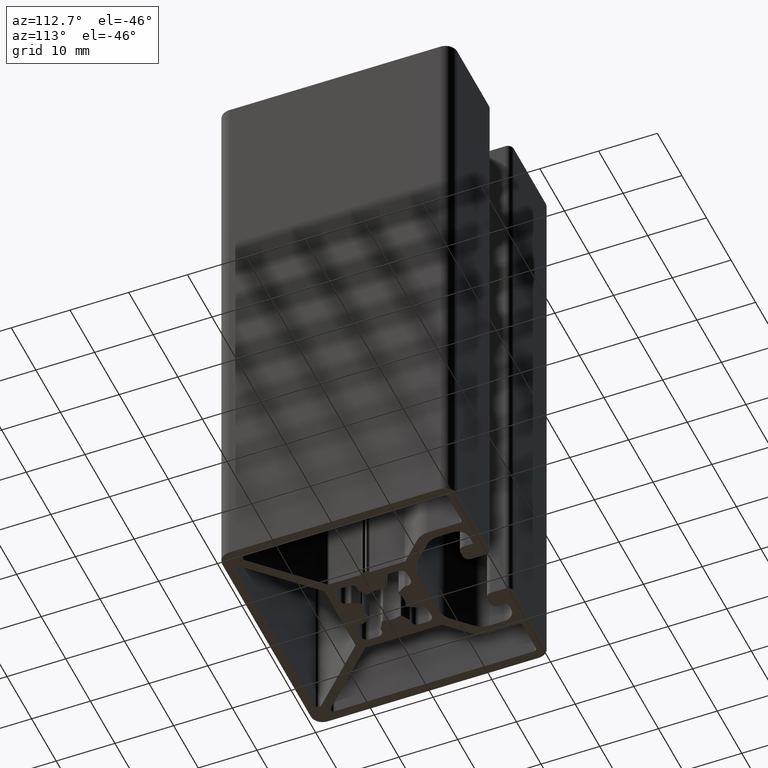
[diagram: clean part render]
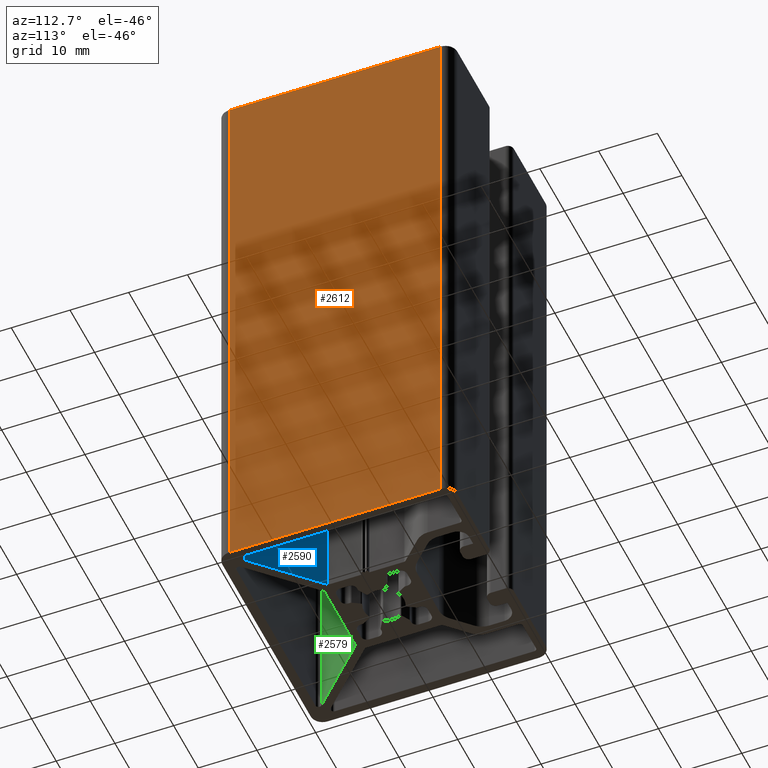
[diagram: same view with three faces highlighted in distinct colors, each labeled with its STEP entity id]
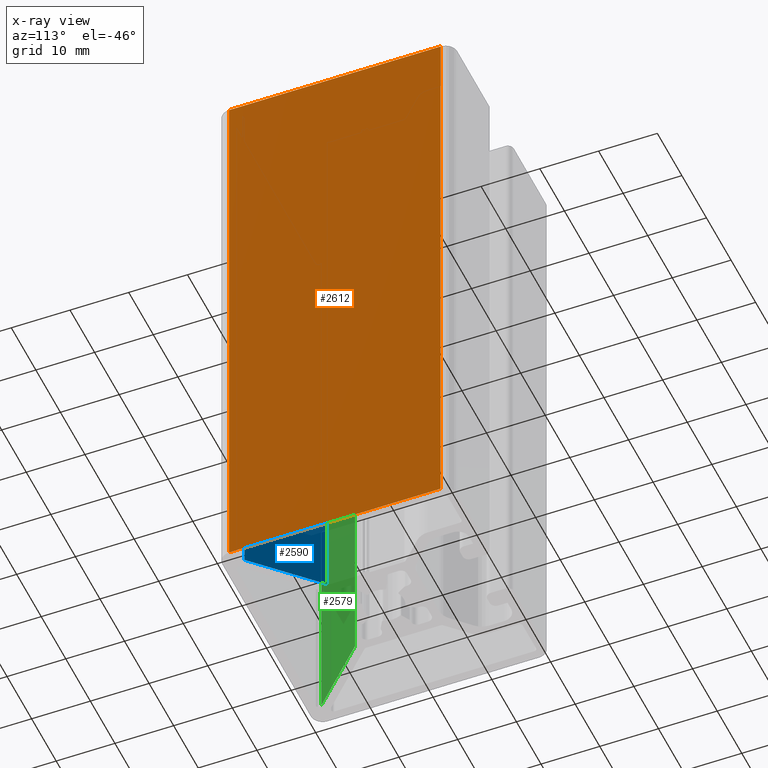
[diagram: x-ray of the same camera — body ghosted, the three highlighted faces saturated]
A machine part, auxiliary view with three faces highlighted in distinct colors.
The next image is the same camera in x-ray (body ghosted, the three faces saturated) — at least one of them is partly hidden behind the body in this view.
Their STEP definitions:

[orange] entity #2612 — the highlighted planar face has unit normal (1, 0, 0).
#348=FACE_OUTER_BOUND('',#483,.T.);
#483=EDGE_LOOP('',(#2279,#2280,#2281,#2282));
#733=LINE('',#4406,#988);
#741=LINE('',#4428,#996);
#742=LINE('',#4432,#997);
#743=LINE('',#4433,#998);
#988=VECTOR('',#3623,36.);
#996=VECTOR('',#3647,100.);
#997=VECTOR('',#3652,100.);
#998=VECTOR('',#3653,36.);
#1249=VERTEX_POINT('',#4403);
#1250=VERTEX_POINT('',#4405);
#1256=VERTEX_POINT('',#4427);
#1257=VERTEX_POINT('',#4431);
#1628=EDGE_CURVE('',#1250,#1249,#733,.T.);
#1639=EDGE_CURVE('',#1256,#1250,#741,.T.);
#1641=EDGE_CURVE('',#1257,#1249,#742,.T.);
#1642=EDGE_CURVE('',#1256,#1257,#743,.T.);
#2279=ORIENTED_EDGE('',*,*,#1628,.T.);
#2280=ORIENTED_EDGE('',*,*,#1641,.F.);
#2281=ORIENTED_EDGE('',*,*,#1642,.F.);
#2282=ORIENTED_EDGE('',*,*,#1639,.T.);
#2482=PLANE('',#2876);
#2612=ADVANCED_FACE('',(#348),#2482,.T.);
#2876=AXIS2_PLACEMENT_3D('',#4430,#3650,#3651);
#3623=DIRECTION('',(0.,-1.,0.));
#3647=DIRECTION('',(0.,0.,1.));
#3650=DIRECTION('center_axis',(1.,0.,0.));
#3651=DIRECTION('ref_axis',(0.,1.,0.));
#3652=DIRECTION('',(0.,0.,1.));
#3653=DIRECTION('',(0.,-1.,0.));
#4403=CARTESIAN_POINT('',(20.,-18.,100.));
#4405=CARTESIAN_POINT('',(20.,18.,100.));
#4406=CARTESIAN_POINT('',(20.,-9.,100.));
#4427=CARTESIAN_POINT('',(20.,18.,0.));
#4428=CARTESIAN_POINT('',(20.,18.,0.));
#4430=CARTESIAN_POINT('Origin',(20.,-18.,0.));
#4431=CARTESIAN_POINT('',(20.,-18.,0.));
#4432=CARTESIAN_POINT('',(20.,-18.,0.));
#4433=CARTESIAN_POINT('',(20.,-9.,0.));

[blue] entity #2590 — the highlighted planar face has unit normal (-0.7071, -0.7071, 0).
#326=FACE_OUTER_BOUND('',#457,.T.);
#457=EDGE_LOOP('',(#2066,#2067,#2068,#2069));
#695=LINE('',#4299,#950);
#696=LINE('',#4303,#951);
#697=LINE('',#4305,#952);
#698=LINE('',#4306,#953);
#950=VECTOR('',#3519,100.);
#951=VECTOR('',#3524,14.0007142674936);
#952=VECTOR('',#3525,100.);
#953=VECTOR('',#3526,14.0007142674936);
#1213=VERTEX_POINT('',#4296);
#1214=VERTEX_POINT('',#4298);
#1215=VERTEX_POINT('',#4302);
#1216=VERTEX_POINT('',#4304);
#1574=EDGE_CURVE('',#1214,#1213,#695,.T.);
#1576=EDGE_CURVE('',#1215,#1213,#696,.T.);
#1577=EDGE_CURVE('',#1216,#1215,#697,.T.);
#1578=EDGE_CURVE('',#1214,#1216,#698,.T.);
#2066=ORIENTED_EDGE('',*,*,#1576,.F.);
#2067=ORIENTED_EDGE('',*,*,#1577,.F.);
#2068=ORIENTED_EDGE('',*,*,#1578,.F.);
#2069=ORIENTED_EDGE('',*,*,#1574,.T.);
#2469=PLANE('',#2835);
#2590=ADVANCED_FACE('',(#326),#2469,.F.);
#2835=AXIS2_PLACEMENT_3D('',#4301,#3522,#3523);
#3519=DIRECTION('',(0.,0.,1.));
#3522=DIRECTION('center_axis',(-0.707106781186548,-0.707106781186547,0.));
#3523=DIRECTION('ref_axis',(0.,0.,1.));
#3524=DIRECTION('',(-0.707106781186547,0.707106781186548,0.));
#3525=DIRECTION('',(0.,0.,1.));
#3526=DIRECTION('',(0.707106781186547,-0.707106781186548,0.));
#4296=CARTESIAN_POINT('',(7.64645360940672,-6.51506975950828,100.));
#4298=CARTESIAN_POINT('',(7.64645360940672,-6.51506975950828,0.));
#4299=CARTESIAN_POINT('',(7.64645360940672,-6.51506975950828,0.));
#4301=CARTESIAN_POINT('Origin',(17.5464536094067,-16.4150697595083,0.));
#4302=CARTESIAN_POINT('',(17.5464536094067,-16.4150697595083,100.));
#4303=CARTESIAN_POINT('',(9.05607276717796,-7.92468891727953,100.));
#4304=CARTESIAN_POINT('',(17.5464536094067,-16.4150697595083,0.));
#4305=CARTESIAN_POINT('',(17.5464536094067,-16.4150697595083,0.));
#4306=CARTESIAN_POINT('',(9.05607276717796,-7.92468891727953,0.));

[green] entity #2579 — the highlighted planar face has unit normal (-0.7071, 0.7071, 0).
#315=FACE_OUTER_BOUND('',#446,.T.);
#446=EDGE_LOOP('',(#2022,#2023,#2024,#2025));
#672=LINE('',#4234,#927);
#673=LINE('',#4237,#928);
#674=LINE('',#4239,#929);
#675=LINE('',#4240,#930);
#927=VECTOR('',#3456,100.);
#928=VECTOR('',#3459,14.0007142674936);
#929=VECTOR('',#3460,14.0007142674936);
#930=VECTOR('',#3461,100.);
#1190=VERTEX_POINT('',#4228);
#1192=VERTEX_POINT('',#4232);
#1193=VERTEX_POINT('',#4236);
#1194=VERTEX_POINT('',#4238);
#1542=EDGE_CURVE('',#1192,#1190,#672,.T.);
#1543=EDGE_CURVE('',#1190,#1193,#673,.T.);
#1544=EDGE_CURVE('',#1194,#1192,#674,.T.);
#1545=EDGE_CURVE('',#1194,#1193,#675,.T.);
#2022=ORIENTED_EDGE('',*,*,#1543,.F.);
#2023=ORIENTED_EDGE('',*,*,#1542,.F.);
#2024=ORIENTED_EDGE('',*,*,#1544,.F.);
#2025=ORIENTED_EDGE('',*,*,#1545,.T.);
#2463=PLANE('',#2814);
#2579=ADVANCED_FACE('',(#315),#2463,.F.);
#2814=AXIS2_PLACEMENT_3D('',#4235,#3457,#3458);
#3456=DIRECTION('',(0.,0.,1.));
#3457=DIRECTION('center_axis',(-0.707106781186549,0.707106781186546,0.));
#3458=DIRECTION('ref_axis',(0.,0.,1.));
#3459=DIRECTION('',(0.707106781186546,0.707106781186549,0.));
#3460=DIRECTION('',(-0.707106781186546,-0.707106781186549,0.));
#3461=DIRECTION('',(0.,0.,1.));
#4228=CARTESIAN_POINT('',(-16.4150687595082,-17.5464406094068,100.));
#4232=CARTESIAN_POINT('',(-16.4150687595082,-17.5464406094068,0.));
#4234=CARTESIAN_POINT('',(-16.4150687595082,-17.5464406094068,0.));
#4235=CARTESIAN_POINT('Origin',(-16.4150687595082,-17.5464406094068,0.));
#4236=CARTESIAN_POINT('',(-6.51506875950826,-7.64644060940675,100.));
#4237=CARTESIAN_POINT('',(-7.9246914172795,-9.056063267178,100.));
#4238=CARTESIAN_POINT('',(-6.51506875950826,-7.64644060940675,0.));
#4239=CARTESIAN_POINT('',(-7.9246914172795,-9.056063267178,0.));
#4240=CARTESIAN_POINT('',(-6.51506875950826,-7.64644060940675,0.));